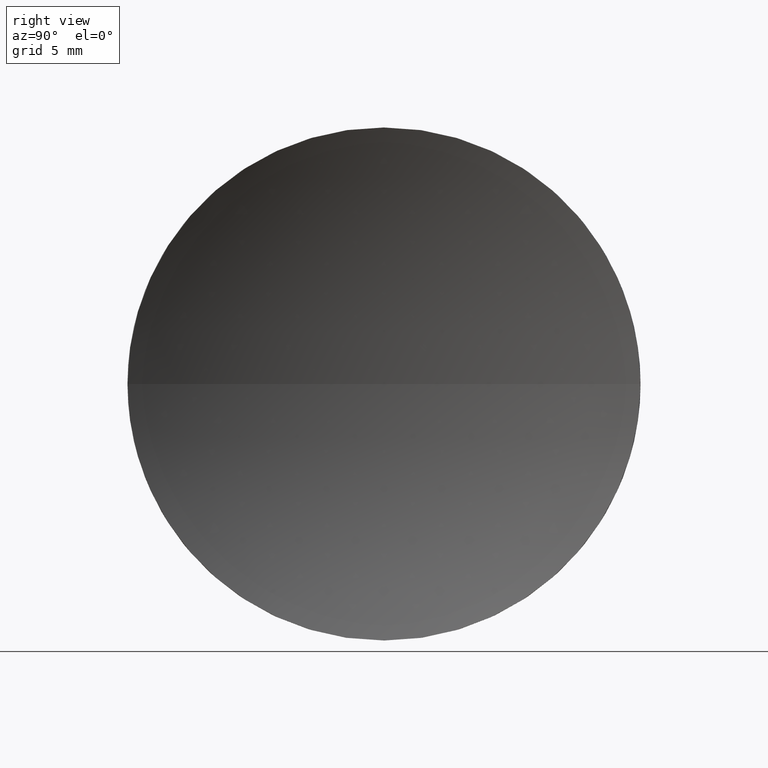
[diagram: clean part render]
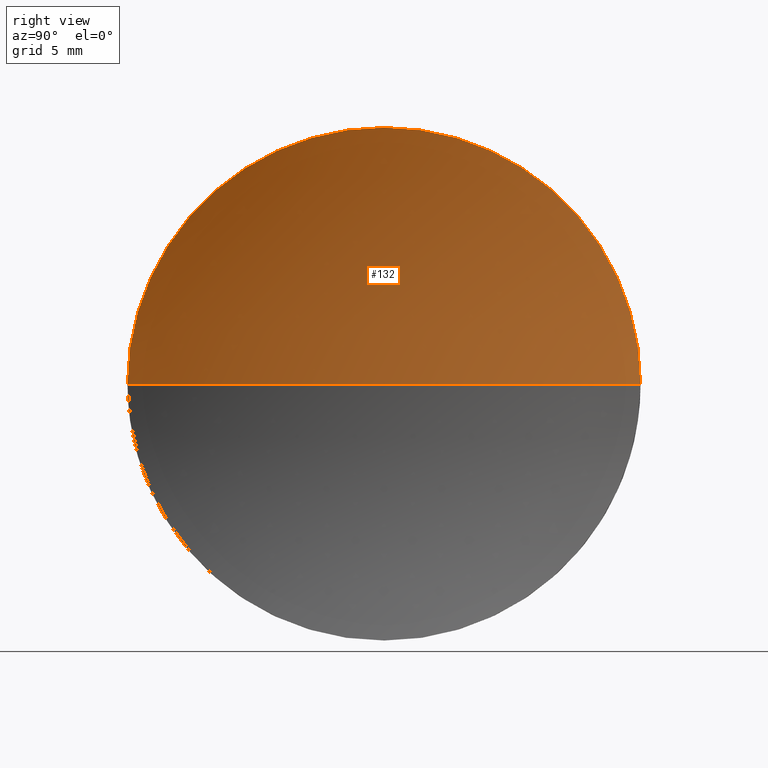
[diagram: same view with one face highlighted and labeled with its STEP entity id]
A machine part, right view. The second image highlights one B-rep face of the part: STEP entity #132.
In plain terms, the highlighted spherical surface has radius 32.5 mm.
Its self-contained STEP definition (entity closure, byte-faithful):
#1 = AXIS2_PLACEMENT_3D ( 'NONE', #136, #167, #178 ) ;
#16 = CIRCLE ( 'NONE', #184, 32.50000000000000000 ) ;
#18 = VERTEX_POINT ( 'NONE', #134 ) ;
#24 = DIRECTION ( 'NONE',  ( -1.000000000000000000, 0.0000000000000000000, 0.0000000000000000000 ) ) ;
#25 = DIRECTION ( 'NONE',  ( 0.0000000000000000000, 0.0000000000000000000, 1.000000000000000000 ) ) ;
#28 = EDGE_CURVE ( 'NONE', #164, #40, #16, .T. ) ;
#33 = AXIS2_PLACEMENT_3D ( 'NONE', #83, #98, #154 ) ;
#38 = CARTESIAN_POINT ( 'NONE',  ( 62.03233705252611700, 20.11076812922678800, 0.0000000000000000000 ) ) ;
#40 = VERTEX_POINT ( 'NONE', #170 ) ;
#67 = CARTESIAN_POINT ( 'NONE',  ( 92.03233705252611700, 32.61076812922678400, 0.0000000000000000000 ) ) ;
#70 = ORIENTED_EDGE ( 'NONE', *, *, #74, .F. ) ;
#74 = EDGE_CURVE ( 'NONE', #164, #18, #105, .T. ) ;
#75 = CIRCLE ( 'NONE', #80, 32.50000000000000000 ) ;
#80 = AXIS2_PLACEMENT_3D ( 'NONE', #67, #82, #139 ) ;
#82 = DIRECTION ( 'NONE',  ( 0.0000000000000000000, -1.224646799147353200E-016, 1.000000000000000000 ) ) ;
#83 = CARTESIAN_POINT ( 'NONE',  ( 62.03233705252611700, 32.61076812922678400, 0.0000000000000000000 ) ) ;
#95 = ORIENTED_EDGE ( 'NONE', *, *, #28, .T. ) ;
#96 = AXIS2_PLACEMENT_3D ( 'NONE', #125, #99, #25 ) ;
#98 = DIRECTION ( 'NONE',  ( -1.000000000000000000, -0.0000000000000000000, -0.0000000000000000000 ) ) ;
#99 = DIRECTION ( 'NONE',  ( -1.000000000000000000, -0.0000000000000000000, -0.0000000000000000000 ) ) ;
#102 = EDGE_CURVE ( 'NONE', #18, #148, #140, .T. ) ;
#105 = CIRCLE ( 'NONE', #96, 12.49999999999999600 ) ;
#124 = ORIENTED_EDGE ( 'NONE', *, *, #102, .F. ) ;
#125 = CARTESIAN_POINT ( 'NONE',  ( 62.03233705252611700, 32.61076812922678400, 0.0000000000000000000 ) ) ;
#132 = ADVANCED_FACE ( 'NONE', ( #162 ), #143, .F. ) ;
#134 = CARTESIAN_POINT ( 'NONE',  ( 62.03233705252611700, 32.61076812922678400, 12.49999999999999600 ) ) ;
#136 = CARTESIAN_POINT ( 'NONE',  ( 92.03233705252611700, 32.61076812922678400, 0.0000000000000000000 ) ) ;
#139 = DIRECTION ( 'NONE',  ( 0.0000000000000000000, -1.000000000000000000, -1.224646799147353500E-016 ) ) ;
#140 = CIRCLE ( 'NONE', #33, 12.49999999999999600 ) ;
#143 = SPHERICAL_SURFACE ( 'NONE', #1, 32.50000000000000000 ) ;
#147 = CARTESIAN_POINT ( 'NONE',  ( 92.03233705252611700, 32.61076812922678400, 0.0000000000000000000 ) ) ;
#148 = VERTEX_POINT ( 'NONE', #181 ) ;
#154 = DIRECTION ( 'NONE',  ( 0.0000000000000000000, 0.0000000000000000000, 1.000000000000000000 ) ) ;
#156 = DIRECTION ( 'NONE',  ( 0.0000000000000000000, 0.0000000000000000000, -1.000000000000000000 ) ) ;
#160 = ORIENTED_EDGE ( 'NONE', *, *, #174, .F. ) ;
#162 = FACE_OUTER_BOUND ( 'NONE', #179, .T. ) ;
#164 = VERTEX_POINT ( 'NONE', #38 ) ;
#167 = DIRECTION ( 'NONE',  ( 0.0000000000000000000, 0.0000000000000000000, 1.000000000000000000 ) ) ;
#170 = CARTESIAN_POINT ( 'NONE',  ( 59.53233705252611000, 32.61076812922678400, 0.0000000000000000000 ) ) ;
#174 = EDGE_CURVE ( 'NONE', #148, #40, #75, .T. ) ;
#178 = DIRECTION ( 'NONE',  ( 0.0000000000000000000, -1.000000000000000000, 0.0000000000000000000 ) ) ;
#179 = EDGE_LOOP ( 'NONE', ( #160, #124, #70, #95 ) ) ;
#181 = CARTESIAN_POINT ( 'NONE',  ( 62.03233705252611700, 45.11076812922679100, 1.530808498934191500E-015 ) ) ;
#184 = AXIS2_PLACEMENT_3D ( 'NONE', #147, #156, #24 ) ;